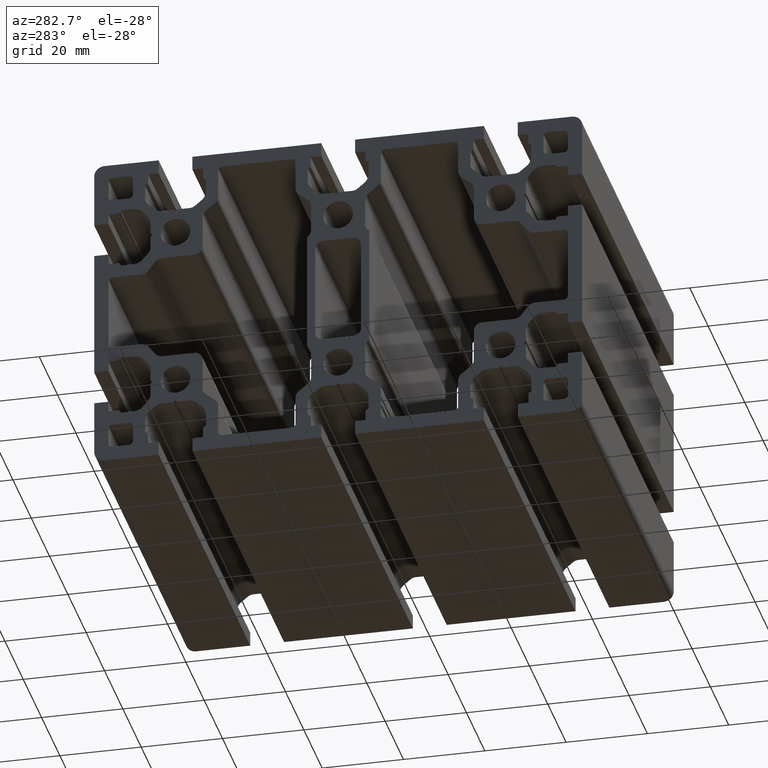
[diagram: clean part render]
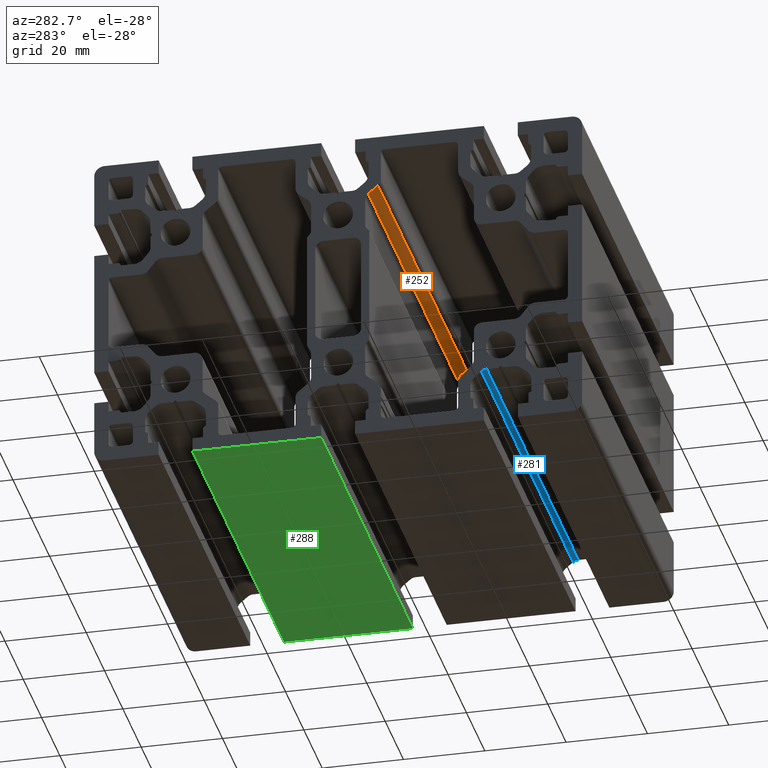
[diagram: same view with three faces highlighted in distinct colors, each labeled with its STEP entity id]
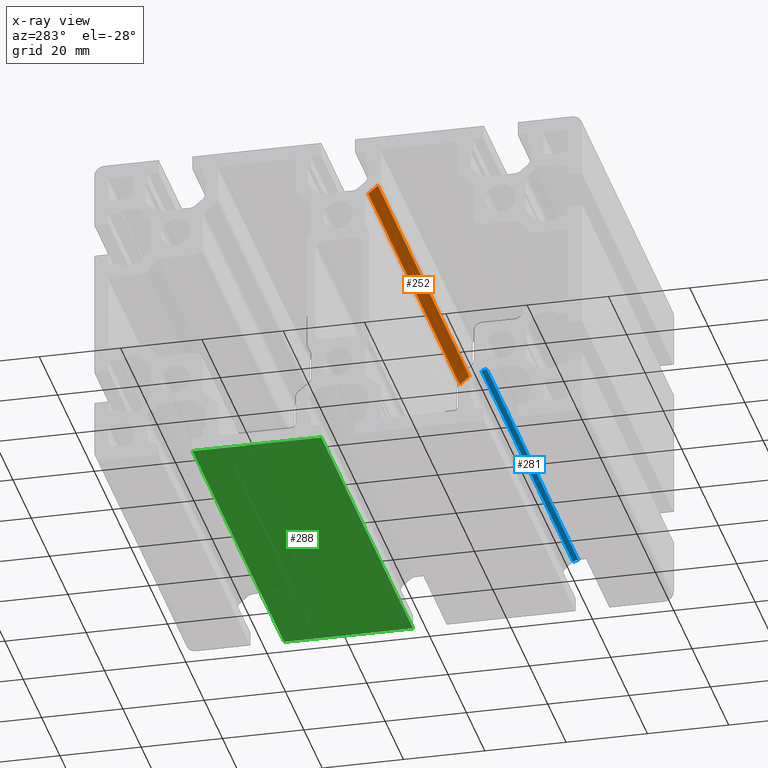
[diagram: x-ray of the same camera — body ghosted, the three highlighted faces saturated]
A machine part, auxiliary view with three faces highlighted in distinct colors.
The next image is the same camera in x-ray (body ghosted, the three faces saturated) — at least one of them is partly hidden behind the body in this view.
Their STEP definitions:

[orange] entity #252 — the highlighted planar face has unit normal (0, -0.6322, -0.7748).
#252 = ADVANCED_FACE ( 'NONE', ( #7357 ), #4443, .T. ) ;
#374 = VECTOR ( 'NONE', #8721, 1000.000000000000200 ) ;
#385 = LINE ( 'NONE', #8588, #374 ) ;
#1689 = VERTEX_POINT ( 'NONE', #4847 ) ;
#1693 = VERTEX_POINT ( 'NONE', #4470 ) ;
#1858 = VERTEX_POINT ( 'NONE', #5359 ) ;
#2195 = ORIENTED_EDGE ( 'NONE', *, *, #11704, .T. ) ;
#2331 = ORIENTED_EDGE ( 'NONE', *, *, #11707, .F. ) ;
#2405 = ORIENTED_EDGE ( 'NONE', *, *, #5633, .F. ) ;
#2591 = ORIENTED_EDGE ( 'NONE', *, *, #4604, .T. ) ;
#2627 = EDGE_LOOP ( 'NONE', ( #2331, #2405, #2591, #2195 ) ) ;
#2806 = VERTEX_POINT ( 'NONE', #8582 ) ;
#2927 = DIRECTION ( 'NONE',  ( -0.0000000000000000000, -0.7747895583186179500, 0.6322192185630242100 ) ) ;
#3053 = DIRECTION ( 'NONE',  ( -1.000000000000000000, -0.0000000000000000000, -0.0000000000000000000 ) ) ;
#3061 = CARTESIAN_POINT ( 'NONE',  ( 100.0000000000000000, -9.764438437145132700, 26.82352399682874000 ) ) ;
#3062 = CARTESIAN_POINT ( 'NONE',  ( 0.0000000000000000000, -9.764438437145141600, 26.82352399682872600 ) ) ;
#4443 = PLANE ( 'NONE',  #6106 ) ;
#4470 = CARTESIAN_POINT ( 'NONE',  ( 100.0000000000000000, -7.385561562877984300, 24.88238828796524900 ) ) ;
#4485 = CARTESIAN_POINT ( 'NONE',  ( 100.0000000000000000, -9.764438437145141600, 26.82352399682872600 ) ) ;
#4604 = EDGE_CURVE ( 'NONE', #1693, #1858, #385, .T. ) ;
#4847 = CARTESIAN_POINT ( 'NONE',  ( 0.0000000000000000000, -7.385561562877984300, 24.88238828796524900 ) ) ;
#5359 = CARTESIAN_POINT ( 'NONE',  ( 100.0000000000000000, -9.764438437145132700, 26.82352399682874000 ) ) ;
#5364 = DIRECTION ( 'NONE',  ( 0.0000000000000000000, -0.6322192185630242100, -0.7747895583186179500 ) ) ;
#5365 = DIRECTION ( 'NONE',  ( 0.0000000000000000000, 0.7747895583186179500, -0.6322192185630242100 ) ) ;
#5633 = EDGE_CURVE ( 'NONE', #1693, #1689, #8870, .T. ) ;
#6106 = AXIS2_PLACEMENT_3D ( 'NONE', #4485, #5364, #5365 ) ;
#7357 = FACE_OUTER_BOUND ( 'NONE', #2627, .T. ) ;
#7927 = DIRECTION ( 'NONE',  ( -1.000000000000000000, -0.0000000000000000000, -0.0000000000000000000 ) ) ;
#8169 = CARTESIAN_POINT ( 'NONE',  ( 100.0000000000000000, -7.385561562877984300, 24.88238828796524900 ) ) ;
#8582 = CARTESIAN_POINT ( 'NONE',  ( 0.0000000000000000000, -9.764438437145132700, 26.82352399682874000 ) ) ;
#8588 = CARTESIAN_POINT ( 'NONE',  ( 100.0000000000000000, -9.764438437145141600, 26.82352399682872600 ) ) ;
#8721 = DIRECTION ( 'NONE',  ( -0.0000000000000000000, -0.7747895583186179500, 0.6322192185630242100 ) ) ;
#8819 = VECTOR ( 'NONE', #7927, 1000.000000000000000 ) ;
#8870 = LINE ( 'NONE', #8169, #8819 ) ;
#10444 = VECTOR ( 'NONE', #2927, 1000.000000000000200 ) ;
#10506 = VECTOR ( 'NONE', #3053, 1000.000000000000000 ) ;
#10508 = LINE ( 'NONE', #3062, #10444 ) ;
#10575 = LINE ( 'NONE', #3061, #10506 ) ;
#11704 = EDGE_CURVE ( 'NONE', #1858, #2806, #10575, .T. ) ;
#11707 = EDGE_CURVE ( 'NONE', #1689, #2806, #10508, .T. ) ;

[blue] entity #281 — the highlighted cylindrical surface (edge-blend (fillet) strip) has radius 2 mm, axis along (-1, -0, -0).
#281 = ADVANCED_FACE ( 'NONE', ( #7174 ), #7112, .F. ) ;
#1774 = ORIENTED_EDGE ( 'NONE', *, *, #11671, .T. ) ;
#1839 = ORIENTED_EDGE ( 'NONE', *, *, #11667, .F. ) ;
#1850 = ORIENTED_EDGE ( 'NONE', *, *, #11668, .F. ) ;
#1874 = EDGE_LOOP ( 'NONE', ( #2242, #1839, #1850, #1774 ) ) ;
#2242 = ORIENTED_EDGE ( 'NONE', *, *, #11666, .T. ) ;
#2933 = DIRECTION ( 'NONE',  ( -1.000000000000000000, -0.0000000000000000000, -0.0000000000000000000 ) ) ;
#2936 = CARTESIAN_POINT ( 'NONE',  ( 100.0000000000000000, -35.25418122347026900, -26.60035188336183200 ) ) ;
#2980 = DIRECTION ( 'NONE',  ( 0.0000000000000000000, 0.0000000000000000000, -1.000000000000000000 ) ) ;
#3005 = CARTESIAN_POINT ( 'NONE',  ( 100.0000000000000000, -36.51861966060315700, -28.14993100000176100 ) ) ;
#3008 = DIRECTION ( 'NONE',  ( 0.0000000000000000000, 0.0000000000000000000, -1.000000000000000000 ) ) ;
#3012 = DIRECTION ( 'NONE',  ( -1.000000000000000000, -0.0000000000000000000, -0.0000000000000000000 ) ) ;
#3020 = CARTESIAN_POINT ( 'NONE',  ( 100.0000000000000000, -36.51861966060315700, -26.14993099999534800 ) ) ;
#3021 = CARTESIAN_POINT ( 'NONE',  ( 0.0000000000000000000, -36.51861966060315700, -28.14993100000176100 ) ) ;
#3083 = DIRECTION ( 'NONE',  ( -1.000000000000000000, -0.0000000000000000000, -0.0000000000000000000 ) ) ;
#3087 = DIRECTION ( 'NONE',  ( -1.000000000000000000, -0.0000000000000000000, -0.0000000000000000000 ) ) ;
#3432 = CARTESIAN_POINT ( 'NONE',  ( 100.0000000000000000, -36.51861966060315700, -26.14993099999534800 ) ) ;
#3435 = CARTESIAN_POINT ( 'NONE',  ( 0.0000000000000000000, -36.51861966060315700, -26.14993099999534800 ) ) ;
#3460 = CARTESIAN_POINT ( 'NONE',  ( 100.0000000000000000, -35.25418122347026900, -26.60035188336183200 ) ) ;
#3533 = CARTESIAN_POINT ( 'NONE',  ( 0.0000000000000000000, -35.25418122347026900, -26.60035188336183200 ) ) ;
#4445 = CARTESIAN_POINT ( 'NONE',  ( 100.0000000000000000, -36.51861966060315700, -28.14993100000176100 ) ) ;
#4515 = DIRECTION ( 'NONE',  ( -1.000000000000000000, -0.0000000000000000000, -0.0000000000000000000 ) ) ;
#5318 = DIRECTION ( 'NONE',  ( 0.0000000000000000000, 0.0000000000000000000, 1.000000000000000000 ) ) ;
#5973 = AXIS2_PLACEMENT_3D ( 'NONE', #4445, #4515, #5318 ) ;
#6375 = AXIS2_PLACEMENT_3D ( 'NONE', #3005, #3012, #3008 ) ;
#6377 = AXIS2_PLACEMENT_3D ( 'NONE', #3021, #2933, #2980 ) ;
#6919 = VERTEX_POINT ( 'NONE', #3435 ) ;
#6928 = VERTEX_POINT ( 'NONE', #3432 ) ;
#7031 = VERTEX_POINT ( 'NONE', #3460 ) ;
#7112 = CYLINDRICAL_SURFACE ( 'NONE', #5973, 2.000000000006413500 ) ;
#7174 = FACE_OUTER_BOUND ( 'NONE', #1874, .T. ) ;
#7469 = VERTEX_POINT ( 'NONE', #3533 ) ;
#10463 = LINE ( 'NONE', #2936, #10471 ) ;
#10471 = VECTOR ( 'NONE', #3087, 1000.000000000000000 ) ;
#10472 = CIRCLE ( 'NONE', #6375, 2.000000000006413500 ) ;
#10474 = LINE ( 'NONE', #3020, #10477 ) ;
#10477 = VECTOR ( 'NONE', #3083, 1000.000000000000000 ) ;
#10571 = CIRCLE ( 'NONE', #6377, 2.000000000006413500 ) ;
#11666 = EDGE_CURVE ( 'NONE', #6919, #7469, #10571, .T. ) ;
#11667 = EDGE_CURVE ( 'NONE', #7031, #7469, #10463, .T. ) ;
#11668 = EDGE_CURVE ( 'NONE', #6928, #7031, #10472, .T. ) ;
#11671 = EDGE_CURVE ( 'NONE', #6928, #6919, #10474, .T. ) ;

[green] entity #288 — the highlighted planar face has unit normal (0, 0, 1).
#288 = ADVANCED_FACE ( 'NONE', ( #7402 ), #4622, .F. ) ;
#2555 = EDGE_LOOP ( 'NONE', ( #6697, #6714, #7002, #7017 ) ) ;
#3727 = CARTESIAN_POINT ( 'NONE',  ( 0.0000000000000000000, 35.84855399997732700, -39.99986199994174300 ) ) ;
#3921 = CARTESIAN_POINT ( 'NONE',  ( 100.0000000000000000, 4.151376999994568900, -39.99986199994174300 ) ) ;
#3929 = CARTESIAN_POINT ( 'NONE',  ( 100.0000000000000000, 35.84855399997732700, -39.99986199994174300 ) ) ;
#4504 = DIRECTION ( 'NONE',  ( 1.000000000000000000, 0.0000000000000000000, -0.0000000000000000000 ) ) ;
#4614 = CARTESIAN_POINT ( 'NONE',  ( 100.0000000000000000, 4.151376999994568900, -39.99986199994174300 ) ) ;
#4622 = PLANE ( 'NONE',  #5982 ) ;
#5093 = DIRECTION ( 'NONE',  ( 0.0000000000000000000, 0.0000000000000000000, 1.000000000000000000 ) ) ;
#5982 = AXIS2_PLACEMENT_3D ( 'NONE', #4614, #5093, #4504 ) ;
#6647 = VERTEX_POINT ( 'NONE', #8460 ) ;
#6697 = ORIENTED_EDGE ( 'NONE', *, *, #11617, .T. ) ;
#6714 = ORIENTED_EDGE ( 'NONE', *, *, #11619, .F. ) ;
#7002 = ORIENTED_EDGE ( 'NONE', *, *, #11629, .F. ) ;
#7017 = ORIENTED_EDGE ( 'NONE', *, *, #11614, .T. ) ;
#7058 = VERTEX_POINT ( 'NONE', #3727 ) ;
#7282 = VERTEX_POINT ( 'NONE', #3921 ) ;
#7311 = VERTEX_POINT ( 'NONE', #3929 ) ;
#7402 = FACE_OUTER_BOUND ( 'NONE', #2555, .T. ) ;
#8460 = CARTESIAN_POINT ( 'NONE',  ( 0.0000000000000000000, 4.151376999994568900, -39.99986199994174300 ) ) ;
#9766 = CARTESIAN_POINT ( 'NONE',  ( 100.0000000000000000, 4.151376999994568900, -39.99986199994174300 ) ) ;
#9821 = DIRECTION ( 'NONE',  ( 0.0000000000000000000, 1.000000000000000000, 0.0000000000000000000 ) ) ;
#9854 = DIRECTION ( 'NONE',  ( 0.0000000000000000000, 1.000000000000000000, 0.0000000000000000000 ) ) ;
#9870 = CARTESIAN_POINT ( 'NONE',  ( 0.0000000000000000000, 4.151376999994568900, -39.99986199994174300 ) ) ;
#9918 = CARTESIAN_POINT ( 'NONE',  ( 100.0000000000000000, 35.84855399997732700, -39.99986199994174300 ) ) ;
#9921 = DIRECTION ( 'NONE',  ( -1.000000000000000000, -0.0000000000000000000, -0.0000000000000000000 ) ) ;
#9922 = CARTESIAN_POINT ( 'NONE',  ( 100.0000000000000000, 4.151376999994568900, -39.99986199994174300 ) ) ;
#9931 = DIRECTION ( 'NONE',  ( -1.000000000000000000, -0.0000000000000000000, -0.0000000000000000000 ) ) ;
#10385 = VECTOR ( 'NONE', #9854, 1000.000000000000000 ) ;
#10391 = LINE ( 'NONE', #9918, #10447 ) ;
#10408 = LINE ( 'NONE', #9870, #10385 ) ;
#10409 = VECTOR ( 'NONE', #9921, 1000.000000000000000 ) ;
#10411 = LINE ( 'NONE', #9922, #10409 ) ;
#10447 = VECTOR ( 'NONE', #9931, 1000.000000000000000 ) ;
#10451 = LINE ( 'NONE', #9766, #10509 ) ;
#10509 = VECTOR ( 'NONE', #9821, 1000.000000000000000 ) ;
#11614 = EDGE_CURVE ( 'NONE', #7282, #6647, #10411, .T. ) ;
#11617 = EDGE_CURVE ( 'NONE', #6647, #7058, #10408, .T. ) ;
#11619 = EDGE_CURVE ( 'NONE', #7311, #7058, #10391, .T. ) ;
#11629 = EDGE_CURVE ( 'NONE', #7282, #7311, #10451, .T. ) ;